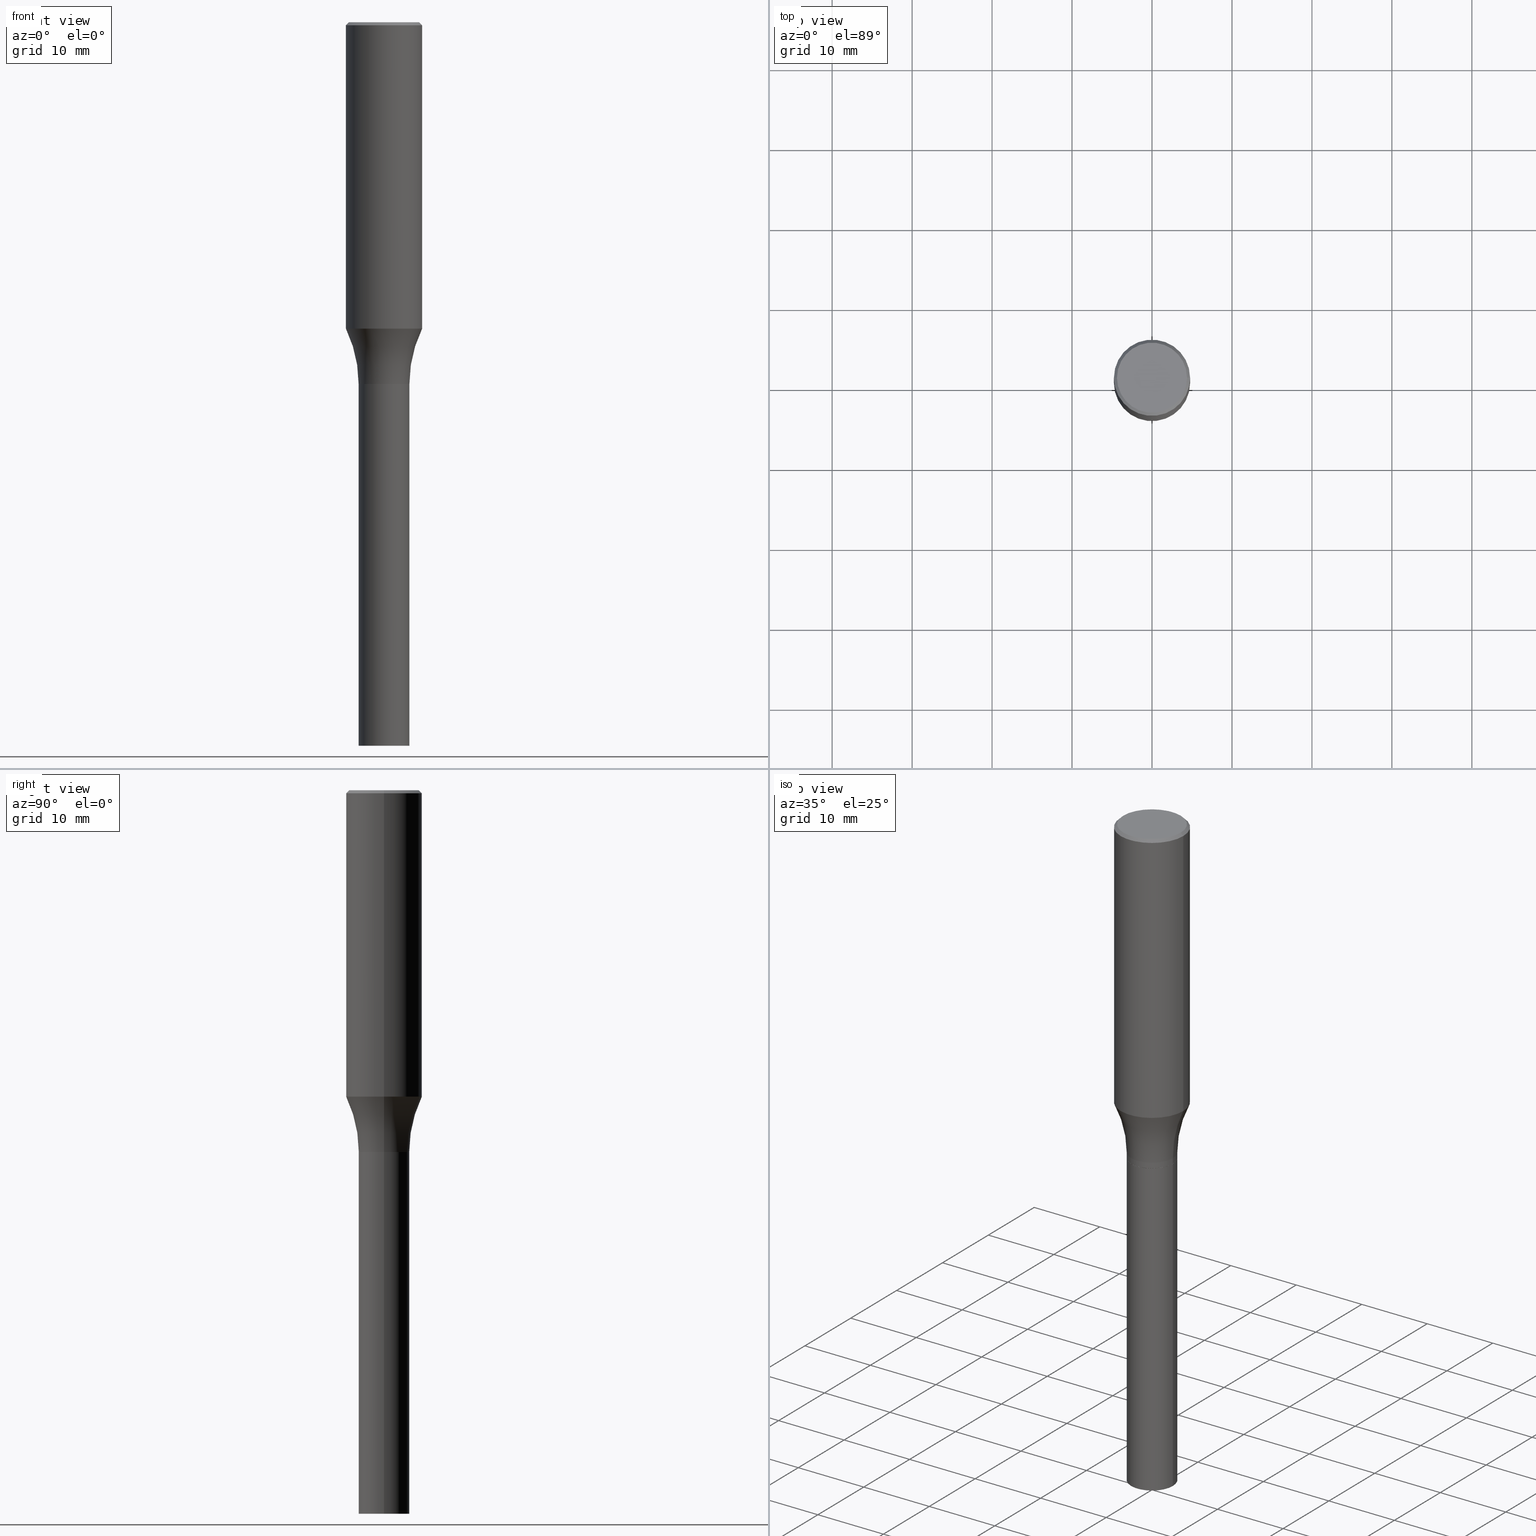
[diagram: canonical four-view strip — front | top / right | iso, engineering-drawing reading convention]
A machine part, canonical four-view strip (front | top / right | iso — engineering-drawing reading convention). The complete STEP part file that produces these views, byte-faithful:
ISO-10303-21;
HEADER;
FILE_DESCRIPTION (( 'STEP AP203' ),
    '1' );
FILE_NAME ('34506.STEP',
    '2024-03-04T15:28:13',
    ( '' ),
    ( '' ),
    'SwSTEP 2.0',
    'SolidWorks 2023',
    '' );
FILE_SCHEMA (( 'CONFIG_CONTROL_DESIGN' ));
ENDSEC;

DATA;
#1 = ADVANCED_FACE ( 'NONE', ( #50 ), #46, .T. ) ;
#2 = CYLINDRICAL_SURFACE ( 'NONE', #88, 0.1249999999999999584 ) ;
#3 = CARTESIAN_POINT ( 'NONE',  ( 0.1250000000000000555, -8.728703347107838319E-16, 6.095220969744923244E-30 ) ) ;
#4 = CARTESIAN_POINT ( 'NONE',  ( 3.668203209277705088E-31, -5.237222008264718399E-17, -0.01499999999999999944 ) ) ;
#5 = VERTEX_POINT ( 'NONE', #265 ) ;
#6 = VECTOR ( 'NONE', #258, 39.37007874015748143 ) ;
#7 = AXIS2_PLACEMENT_3D ( 'NONE', #281, #72, #35 ) ;
#8 = ORIENTED_EDGE ( 'NONE', *, *, #402, .T. ) ;
#9 = CARTESIAN_POINT ( 'NONE',  ( 0.1875000000000000278, -1.338715594664809642E-15, -0.01499999999999999944 ) ) ;
#10 = VECTOR ( 'NONE', #183, 39.37007874015748143 ) ;
#11 = DIRECTION ( 'NONE',  ( 1.000000000000000000, -6.982962677686266711E-15, 4.874714842691873619E-29 ) ) ;
#12 = CARTESIAN_POINT ( 'NONE',  ( -0.1245000000000000689, -5.441938479962453879E-15, -1.811999999999999611 ) ) ;
#13 = ORIENTED_EDGE ( 'NONE', *, *, #89, .F. ) ;
#14 = PLANE ( 'NONE',  #323 ) ;
#15 = APPROVAL_ROLE ( '' ) ;
#16 = VERTEX_POINT ( 'NONE', #49 ) ;
#17 = VECTOR ( 'NONE', #283, 39.37007874015748143 ) ;
#18 = ORIENTED_EDGE ( 'NONE', *, *, #446, .T. ) ;
#19 = CIRCLE ( 'NONE', #284, 0.1249999999999999861 ) ;
#20 = CARTESIAN_POINT ( 'NONE',  ( 0.000000000000000000, 0.000000000000000000, 0.000000000000000000 ) ) ;
#21 = SECURITY_CLASSIFICATION ( '', '', #58 ) ;
#22 = ADVANCED_FACE ( 'NONE', ( #345 ), #14, .F. ) ;
#23 = PRODUCT_DEFINITION_SHAPE ( 'NONE', 'NONE',  #248 ) ;
#24 = FACE_OUTER_BOUND ( 'NONE', #249, .T. ) ;
#25 = ORIENTED_EDGE ( 'NONE', *, *, #121, .F. ) ;
#26 = CYLINDRICAL_SURFACE ( 'NONE', #371, 0.1875000000000000555 ) ;
#27 = CARTESIAN_POINT ( 'NONE',  ( 1.511595370828340099E-45, -2.158157575259326350E-31, -6.181208964944381512E-17 ) ) ;
#28 = EDGE_LOOP ( 'NONE', ( #68, #221, #69, #157 ) ) ;
#29 = EDGE_CURVE ( 'NONE', #246, #184, #116, .T. ) ;
#30 = DIRECTION ( 'NONE',  ( 1.000000000000000000, -6.982962677686265133E-15, 0.000000000000000000 ) ) ;
#31 = AXIS2_PLACEMENT_3D ( 'NONE', #198, #259, #453 ) ;
#32 =( GEOMETRIC_REPRESENTATION_CONTEXT ( 3 ) GLOBAL_UNCERTAINTY_ASSIGNED_CONTEXT ( ( #305 ) ) GLOBAL_UNIT_ASSIGNED_CONTEXT ( ( #94, #378, #408 ) ) REPRESENTATION_CONTEXT ( 'NONE', 'WORKASPACE' ) );
#33 = EDGE_LOOP ( 'NONE', ( #333, #328, #322, #336 ) ) ;
#34 = DIRECTION ( 'NONE',  ( 1.000000000000000000, -6.982962677686263555E-15, 0.000000000000000000 ) ) ;
#35 = DIRECTION ( 'NONE',  ( 1.000000000000000000, -6.982962677686262766E-15, 0.000000000000000000 ) ) ;
#36 = DIRECTION ( 'NONE',  ( 1.000000000000000000, -6.982962677686265922E-15, 4.876176775795935793E-29 ) ) ;
#37 = VERTEX_POINT ( 'NONE', #136 ) ;
#38 = DIRECTION ( 'NONE',  ( -2.445468806185136597E-29, 3.491481338843145583E-15, 1.000000000000000000 ) ) ;
#39 = CARTESIAN_POINT ( 'NONE',  ( 4.431189476807466720E-29, -6.326564185983779002E-15, -1.811999999999999611 ) ) ;
#40 = AXIS2_PLACEMENT_3D ( 'NONE', #44, #122, #149 ) ;
#41 = CC_DESIGN_DATE_AND_TIME_ASSIGNMENT ( #452, #130, ( #21 ) ) ;
#42 = ORIENTED_EDGE ( 'NONE', *, *, #168, .F. ) ;
#43 = ADVANCED_FACE ( 'NONE', ( #434 ), #350, .F. ) ;
#44 = CARTESIAN_POINT ( 'NONE',  ( 4.355379943815728162E-29, -6.218328264479641837E-15, -1.780999999999999917 ) ) ;
#45 = ADVANCED_FACE ( 'NONE', ( #24 ), #290, .T. ) ;
#46 = CONICAL_SURFACE ( 'NONE', #53, 0.1875000000000000278, 0.7853981633974507215 ) ;
#47 = AXIS2_PLACEMENT_3D ( 'NONE', #367, #444, #120 ) ;
#48 = LINE ( 'NONE', #295, #465 ) ;
#49 = CARTESIAN_POINT ( 'NONE',  ( 0.1250000000000000555, -7.199434520694563130E-15, -1.811999999999999611 ) ) ;
#50 = FACE_OUTER_BOUND ( 'NONE', #28, .T. ) ;
#51 = PERSON_AND_ORGANIZATION ( #171, #182 ) ;
#52 = PERSON_AND_ORGANIZATION_ROLE ( 'creator' ) ;
#53 = AXIS2_PLACEMENT_3D ( 'NONE', #131, #124, #347 ) ;
#54 = TOROIDAL_SURFACE ( 'NONE', #325, 0.7499999999999998890, 0.6250000000000000000 ) ;
#55 = APPROVAL_PERSON_ORGANIZATION ( #222, #389, #211 ) ;
#56 = FACE_OUTER_BOUND ( 'NONE', #426, .T. ) ;
#57 = DIRECTION ( 'NONE',  ( -1.000000000000000000, 7.105427357601001859E-15, 0.000000000000000000 ) ) ;
#58 = SECURITY_CLASSIFICATION_LEVEL ( 'unclassified' ) ;
#59 = ORIENTED_EDGE ( 'NONE', *, *, #289, .T. ) ;
#60 = CARTESIAN_POINT ( 'NONE',  ( 4.431189476807466720E-29, -6.326564185983779002E-15, -1.811999999999999611 ) ) ;
#61 = CARTESIAN_POINT ( 'NONE',  ( 4.431189476807466720E-29, -6.326564185983779002E-15, -1.811999999999999611 ) ) ;
#62 = AXIS2_PLACEMENT_3D ( 'NONE', #118, #78, #36 ) ;
#63 = EDGE_LOOP ( 'NONE', ( #79, #101 ) ) ;
#64 = AXIS2_PLACEMENT_3D ( 'NONE', #205, #392, #315 ) ;
#65 = FACE_OUTER_BOUND ( 'NONE', #451, .T. ) ;
#66 = DIRECTION ( 'NONE',  ( 0.7071067811865595631, -2.468850131082382884E-15, 0.7071067811865354713 ) ) ;
#67 = EDGE_CURVE ( 'NONE', #365, #184, #235, .T. ) ;
#68 = ORIENTED_EDGE ( 'NONE', *, *, #366, .F. ) ;
#69 = ORIENTED_EDGE ( 'NONE', *, *, #121, .T. ) ;
#70 = ORIENTED_EDGE ( 'NONE', *, *, #300, .T. ) ;
#71 = CARTESIAN_POINT ( 'NONE',  ( 4.429966742404374479E-29, -6.324818445314357499E-15, -1.811499999999999888 ) ) ;
#72 = DIRECTION ( 'NONE',  ( -2.445468806185136597E-29, 3.491481338843145583E-15, 1.000000000000000000 ) ) ;
#73 = COORDINATED_UNIVERSAL_TIME_OFFSET ( 5, 0, .BEHIND. ) ;
#74 = FACE_OUTER_BOUND ( 'NONE', #134, .T. ) ;
#75 = DIRECTION ( 'NONE',  ( -2.445468806185136597E-29, 3.491481338843145583E-15, 1.000000000000000000 ) ) ;
#76 = VERTEX_POINT ( 'NONE', #459 ) ;
#77 = ADVANCED_FACE ( 'NONE', ( #342 ), #339, .T. ) ;
#78 = DIRECTION ( 'NONE',  ( -2.445468806185136597E-29, 3.491481338843145583E-15, 1.000000000000000000 ) ) ;
#79 = ORIENTED_EDGE ( 'NONE', *, *, #129, .T. ) ;
#80 = CIRCLE ( 'NONE', #7, 0.1245000000000000689 ) ;
#81 = EDGE_CURVE ( 'NONE', #85, #37, #406, .T. ) ;
#82 = APPLICATION_PROTOCOL_DEFINITION ( 'international standard', 'config_control_design', 1994, #165 ) ;
#83 = VERTEX_POINT ( 'NONE', #226 ) ;
#84 = DIRECTION ( 'NONE',  ( 1.000000000000000000, -6.982962677686267499E-15, 0.000000000000000000 ) ) ;
#85 = VERTEX_POINT ( 'NONE', #376 ) ;
#86 = FACE_OUTER_BOUND ( 'NONE', #33, .T. ) ;
#87 = DIRECTION ( 'NONE',  ( -2.445468806185136597E-29, 3.491481338843145583E-15, 1.000000000000000000 ) ) ;
#88 = AXIS2_PLACEMENT_3D ( 'NONE', #312, #268, #417 ) ;
#89 = EDGE_CURVE ( 'NONE', #356, #435, #296, .T. ) ;
#90 = AXIS2_PLACEMENT_3D ( 'NONE', #320, #159, #242 ) ;
#91 = CARTESIAN_POINT ( 'NONE',  ( 0.1249999999999999584, -8.728703347107831416E-16, 6.095220969744918340E-30 ) ) ;
#92 = AXIS2_PLACEMENT_3D ( 'NONE', #61, #234, #84 ) ;
#93 = CC_DESIGN_APPROVAL ( #382, ( #224 ) ) ;
#94 =( CONVERSION_BASED_UNIT ( 'INCH', #196 ) LENGTH_UNIT ( ) NAMED_UNIT ( #399 ) );
#95 = DATE_AND_TIME ( #454, #293 ) ;
#96 = PERSON_AND_ORGANIZATION ( #171, #182 ) ;
#97 = CARTESIAN_POINT ( 'NONE',  ( 3.689157981581848142E-29, -5.267139869524930466E-15, -1.508568816028707404 ) ) ;
#98 = DIRECTION ( 'NONE',  ( 2.438088387897960049E-29, -3.491481338843145188E-15, -1.000000000000000000 ) ) ;
#99 = CARTESIAN_POINT ( 'NONE',  ( -0.1875000000000000278, 1.256933281983527732E-15, -0.01499999999999999944 ) ) ;
#100 = APPROVAL_STATUS ( 'not_yet_approved' ) ;
#101 = ORIENTED_EDGE ( 'NONE', *, *, #450, .T. ) ;
#102 = CARTESIAN_POINT ( 'NONE',  ( 0.1250000000000000555, -1.330952686367006701E-14, -3.561999999999999833 ) ) ;
#103 = ORIENTED_EDGE ( 'NONE', *, *, #110, .T. ) ;
#104 = CIRCLE ( 'NONE', #64, 0.1250000000000000555 ) ;
#105 = ORIENTED_EDGE ( 'NONE', *, *, #150, .T. ) ;
#106 = ORIENTED_EDGE ( 'NONE', *, *, #67, .T. ) ;
#107 = CIRCLE ( 'NONE', #381, 0.1250000000000000555 ) ;
#108 = APPROVAL_PERSON_ORGANIZATION ( #197, #382, #200 ) ;
#109 = DIRECTION ( 'NONE',  ( -2.445468806185136877E-29, 3.491481338843145188E-15, 1.000000000000000000 ) ) ;
#110 = EDGE_CURVE ( 'NONE', #184, #365, #332, .T. ) ;
#111 = ORIENTED_EDGE ( 'NONE', *, *, #110, .F. ) ;
#112 = FACE_OUTER_BOUND ( 'NONE', #287, .T. ) ;
#113 = ORIENTED_EDGE ( 'NONE', *, *, #402, .F. ) ;
#114 = ADVANCED_FACE ( 'NONE', ( #86 ), #123, .T. ) ;
#115 = APPLICATION_CONTEXT ( 'configuration controlled 3d designs of mechanical parts and assemblies' ) ;
#116 = CIRCLE ( 'NONE', #386, 0.6250000000000000000 ) ;
#117 = CIRCLE ( 'NONE', #457, 0.1249999999999999861 ) ;
#118 = CARTESIAN_POINT ( 'NONE',  ( 0.000000000000000000, 0.000000000000000000, 0.000000000000000000 ) ) ;
#119 = DIRECTION ( 'NONE',  ( -2.445468806185136877E-29, 3.491481338843145188E-15, 1.000000000000000000 ) ) ;
#120 = DIRECTION ( 'NONE',  ( 1.000000000000000000, -6.982962677686265133E-15, 0.000000000000000000 ) ) ;
#121 = EDGE_CURVE ( 'NONE', #435, #410, #343, .T. ) ;
#122 = DIRECTION ( 'NONE',  ( -2.445468806185136597E-29, 3.491481338843145583E-15, 1.000000000000000000 ) ) ;
#123 = CONICAL_SURFACE ( 'NONE', #308, 0.1245000000000000689, 0.7853981633974653764 ) ;
#124 = DIRECTION ( 'NONE',  ( 2.445468806185136597E-29, -3.491481338843145583E-15, -1.000000000000000000 ) ) ;
#125 = EDGE_CURVE ( 'NONE', #401, #189, #107, .T. ) ;
#126 = DATE_TIME_ROLE ( 'creation_date' ) ;
#127 = ADVANCED_FACE ( 'NONE', ( #65 ), #239, .F. ) ;
#128 = DATE_AND_TIME ( #264, #334 ) ;
#129 = EDGE_CURVE ( 'NONE', #16, #138, #104, .T. ) ;
#130 = DATE_TIME_ROLE ( 'classification_date' ) ;
#131 = CARTESIAN_POINT ( 'NONE',  ( 3.668203209277705088E-31, -5.237222008264718399E-17, -0.01499999999999999944 ) ) ;
#132 = DIRECTION ( 'NONE',  ( 0.000000000000000000, 0.000000000000000000, 1.000000000000000000 ) ) ;
#133 = DIRECTION ( 'NONE',  ( -2.438088387897960049E-29, 3.491481338843145188E-15, 1.000000000000000000 ) ) ;
#134 = EDGE_LOOP ( 'NONE', ( #433, #373, #167, #253 ) ) ;
#135 = DIRECTION ( 'NONE',  ( 1.000000000000000000, -6.982962677686265133E-15, 0.000000000000000000 ) ) ;
#136 = CARTESIAN_POINT ( 'NONE',  ( -0.1250000000000000000, -5.383394935196874435E-15, -1.811499999999999888 ) ) ;
#137 = CYLINDRICAL_SURFACE ( 'NONE', #403, 0.1249999999999999584 ) ;
#138 = VERTEX_POINT ( 'NONE', #241 ) ;
#139 = CARTESIAN_POINT ( 'NONE',  ( 0.1725000000000000144, -1.261075749640199505E-15, -6.181208964943518695E-17 ) ) ;
#140 = CARTESIAN_POINT ( 'NONE',  ( 4.355379943815728162E-29, -6.218328264479641837E-15, -1.780999999999999917 ) ) ;
#141 = CIRCLE ( 'NONE', #255, 0.1725000000000000144 ) ;
#142 = ORIENTED_EDGE ( 'NONE', *, *, #300, .F. ) ;
#143 = CC_DESIGN_APPROVAL ( #286, ( #21 ) ) ;
#144 = EDGE_LOOP ( 'NONE', ( #277, #398, #8, #162 ) ) ;
#145 = AXIS2_PLACEMENT_3D ( 'NONE', #4, #75, #400 ) ;
#146 = ORIENTED_EDGE ( 'NONE', *, *, #422, .F. ) ;
#147 = EDGE_CURVE ( 'NONE', #189, #401, #437, .T. ) ;
#148 = CIRCLE ( 'NONE', #419, 0.1245000000000000689 ) ;
#149 = DIRECTION ( 'NONE',  ( 1.000000000000000000, -6.982962677686265922E-15, 4.883557194083112340E-29 ) ) ;
#150 = EDGE_CURVE ( 'NONE', #356, #246, #355, .T. ) ;
#151 = EDGE_LOOP ( 'NONE', ( #464, #348, #179, #113 ) ) ;
#152 = AXIS2_PLACEMENT_3D ( 'NONE', #298, #344, #443 ) ;
#153 = CIRCLE ( 'NONE', #230, 0.6250000000000000000 ) ;
#154 = ADVANCED_FACE ( 'NONE', ( #273 ), #26, .T. ) ;
#155 = CLOSED_SHELL ( 'NONE', ( #210, #22, #304, #43 ) ) ;
#156 = APPROVAL_PERSON_ORGANIZATION ( #51, #286, #15 ) ;
#157 = ORIENTED_EDGE ( 'NONE', *, *, #231, .F. ) ;
#158 = DIRECTION ( 'NONE',  ( -2.438088387897960049E-29, 3.491481338843145188E-15, 1.000000000000000000 ) ) ;
#159 = DIRECTION ( 'NONE',  ( 2.445468806185136597E-29, -3.491481338843145583E-15, -1.000000000000000000 ) ) ;
#160 = CARTESIAN_POINT ( 'NONE',  ( 0.1875000000000000555, -6.576445371591104685E-15, -1.508568816028707404 ) ) ;
#161 = DIRECTION ( 'NONE',  ( -2.445468806185136597E-29, 3.491481338843145583E-15, 1.000000000000000000 ) ) ;
#162 = ORIENTED_EDGE ( 'NONE', *, *, #450, .F. ) ;
#163 = DIRECTION ( 'NONE',  ( 1.000000000000000000, -6.982962677686265922E-15, 4.876176775795935793E-29 ) ) ;
#164 = MANIFOLD_SOLID_BREP ( 'Body-Move/Copy2[1]', #155 ) ;
#165 = APPLICATION_CONTEXT ( 'configuration controlled 3d designs of mechanical parts and assemblies' ) ;
#166 = MANIFOLD_SOLID_BREP ( 'Body-Move/Copy2[2]', #254 ) ;
#167 = ORIENTED_EDGE ( 'NONE', *, *, #309, .T. ) ;
#168 = EDGE_CURVE ( 'NONE', #356, #365, #153, .T. ) ;
#169 = CARTESIAN_POINT ( 'NONE',  ( -0.1875000000000000278, 1.256933281983527732E-15, -0.01499999999999999944 ) ) ;
#170 = CONICAL_SURFACE ( 'NONE', #440, 0.1245000000000000689, 0.7853981633974653764 ) ;
#171 = PERSON ( 'UNSPECIFIED', 'UNSPECIFIED', 'UNSPECIFIED', ('UNSPECIFIED'), ('UNSPECIFIED'), ('UNSPECIFIED') ) ;
#172 = CARTESIAN_POINT ( 'NONE',  ( 8.758450869083629996E-29, -1.236836032911767685E-14, -3.561999999999999833 ) ) ;
#173 = DIRECTION ( 'NONE',  ( -2.445468806185136597E-29, 3.491481338843145583E-15, 1.000000000000000000 ) ) ;
#174 = VERTEX_POINT ( 'NONE', #139 ) ;
#175 = FACE_OUTER_BOUND ( 'NONE', #394, .T. ) ;
#176 = LINE ( 'NONE', #3, #261 ) ;
#177 = LINE ( 'NONE', #458, #187 ) ;
#178 = DIRECTION ( 'NONE',  ( -2.445468806185136597E-29, 3.491481338843145583E-15, 1.000000000000000000 ) ) ;
#179 = ORIENTED_EDGE ( 'NONE', *, *, #129, .F. ) ;
#180 = AXIS2_PLACEMENT_3D ( 'NONE', #456, #252, #212 ) ;
#181 = CARTESIAN_POINT ( 'NONE',  ( -0.1249999999999999584, 8.881784197001249365E-16, -6.148668862818630826E-30 ) ) ;
#182 = ORGANIZATION ( 'UNSPECIFIED', 'UNSPECIFIED', '' ) ;
#183 = DIRECTION ( 'NONE',  ( -2.445468806185136877E-29, 3.491481338843145188E-15, 1.000000000000000000 ) ) ;
#184 = VERTEX_POINT ( 'NONE', #271 ) ;
#185 = DIRECTION ( 'NONE',  ( 1.000000000000000000, -6.982962677686265922E-15, 0.000000000000000000 ) ) ;
#186 = ORIENTED_EDGE ( 'NONE', *, *, #289, .F. ) ;
#187 = VECTOR ( 'NONE', #269, 39.37007874015748143 ) ;
#188 = DIRECTION ( 'NONE',  ( -2.445468806185136597E-29, 3.491481338843145583E-15, 1.000000000000000000 ) ) ;
#189 = VERTEX_POINT ( 'NONE', #102 ) ;
#190 = CC_DESIGN_PERSON_AND_ORGANIZATION_ASSIGNMENT ( #96, #418, ( #224 ) ) ;
#191 = APPROVAL_DATE_TIME ( #95, #389 ) ;
#192 = EDGE_CURVE ( 'NONE', #37, #5, #19, .T. ) ;
#193 = CALENDAR_DATE ( 2024, 4, 3 ) ;
#194 = AXIS2_PLACEMENT_3D ( 'NONE', #260, #225, #185 ) ;
#195 = LOCAL_TIME ( 10, 28, 13.00000000000000000, #352 ) ;
#196 = LENGTH_MEASURE_WITH_UNIT ( LENGTH_MEASURE( 0.02539999999999999897 ), #306 );
#197 = PERSON_AND_ORGANIZATION ( #171, #182 ) ;
#198 = CARTESIAN_POINT ( 'NONE',  ( 3.668203209277705088E-31, -5.237222008264718399E-17, -0.01499999999999999944 ) ) ;
#199 = ADVANCED_FACE ( 'NONE', ( #175 ), #2, .T. ) ;
#200 = APPROVAL_ROLE ( '' ) ;
#201 = ORIENTED_EDGE ( 'NONE', *, *, #168, .T. ) ;
#202 = DIRECTION ( 'NONE',  ( -2.445468806185136597E-29, 3.491481338843145583E-15, 1.000000000000000000 ) ) ;
#203 = DIRECTION ( 'NONE',  ( -1.000000000000000000, 6.982962677686265922E-15, -4.876176775795935793E-29 ) ) ;
#204 = VECTOR ( 'NONE', #66, 39.37007874015748143 ) ;
#205 = CARTESIAN_POINT ( 'NONE',  ( 4.431189476807466720E-29, -6.326564185983779002E-15, -1.811999999999999611 ) ) ;
#206 = CC_DESIGN_PERSON_AND_ORGANIZATION_ASSIGNMENT ( #240, #52, ( #224 ) ) ;
#207 = LINE ( 'NONE', #216, #10 ) ;
#208 = DIRECTION ( 'NONE',  ( 1.000000000000000000, -6.982962677686267499E-15, 4.876176775795936353E-29 ) ) ;
#209 = ORIENTED_EDGE ( 'NONE', *, *, #231, .T. ) ;
#210 = ADVANCED_FACE ( 'NONE', ( #307 ), #423, .T. ) ;
#211 = APPROVAL_ROLE ( '' ) ;
#212 = DIRECTION ( 'NONE',  ( 1.000000000000000000, -6.982962677686267499E-15, 4.876176775795936353E-29 ) ) ;
#213 = CARTESIAN_POINT ( 'NONE',  ( 4.355379943815728162E-29, -6.218328264479641837E-15, -1.780999999999999917 ) ) ;
#214 = TOROIDAL_SURFACE ( 'NONE', #40, 0.7499999999999998890, 0.6250000000000000000 ) ;
#215 = CC_DESIGN_DATE_AND_TIME_ASSIGNMENT ( #390, #126, ( #248 ) ) ;
#216 = CARTESIAN_POINT ( 'NONE',  ( -0.1250000000000000555, 8.881784197001256268E-16, -6.148668862818635730E-30 ) ) ;
#217 = DIRECTION ( 'NONE',  ( -2.445468806185136597E-29, 3.491481338843145583E-15, 1.000000000000000000 ) ) ;
#218 = DIRECTION ( 'NONE',  ( -2.445468806185136877E-29, 3.491481338843145188E-15, 1.000000000000000000 ) ) ;
#219 = DIRECTION ( 'NONE',  ( -2.445468806185136597E-29, 3.491481338843145583E-15, 1.000000000000000000 ) ) ;
#220 = CARTESIAN_POINT ( 'NONE',  ( 0.1875000000000000555, -1.309305502066175205E-15, 9.142831454617382414E-30 ) ) ;
#221 = ORIENTED_EDGE ( 'NONE', *, *, #340, .T. ) ;
#222 = PERSON_AND_ORGANIZATION ( #171, #182 ) ;
#223 = CIRCLE ( 'NONE', #448, 0.1725000000000000144 ) ;
#224 = PRODUCT_DEFINITION_FORMATION_WITH_SPECIFIED_SOURCE ( 'ANY', '', #396, .NOT_KNOWN. ) ;
#225 = DIRECTION ( 'NONE',  ( -2.445468806185136597E-29, 3.491481338843145583E-15, 1.000000000000000000 ) ) ;
#226 = CARTESIAN_POINT ( 'NONE',  ( -0.1725000000000000144, 1.230747171942204192E-15, -6.181208964945233235E-17 ) ) ;
#227 = ORIENTED_EDGE ( 'NONE', *, *, #318, .F. ) ;
#228 = ORIENTED_EDGE ( 'NONE', *, *, #245, .T. ) ;
#229 = FACE_OUTER_BOUND ( 'NONE', #251, .T. ) ;
#230 = AXIS2_PLACEMENT_3D ( 'NONE', #319, #421, #135 ) ;
#231 = EDGE_CURVE ( 'NONE', #83, #410, #280, .T. ) ;
#232 = CALENDAR_DATE ( 2024, 4, 3 ) ;
#233 = PERSON_AND_ORGANIZATION_ROLE ( 'creator' ) ;
#234 = DIRECTION ( 'NONE',  ( -2.445468806185136597E-29, 3.491481338843145583E-15, 1.000000000000000000 ) ) ;
#235 = CIRCLE ( 'NONE', #411, 0.1249999999999999584 ) ;
#236 = CIRCLE ( 'NONE', #31, 0.1875000000000000278 ) ;
#237 = DIRECTION ( 'NONE',  ( -2.445468806185136877E-29, 3.491481338843145188E-15, 1.000000000000000000 ) ) ;
#238 = APPROVAL_DATE_TIME ( #413, #286 ) ;
#239 = PLANE ( 'NONE',  #243 ) ;
#240 = PERSON_AND_ORGANIZATION ( #171, #182 ) ;
#241 = CARTESIAN_POINT ( 'NONE',  ( -0.1250000000000000555, -8.493431937771405711E-15, -1.811999999999999611 ) ) ;
#242 = DIRECTION ( 'NONE',  ( -1.000000000000000000, 6.982962677686265922E-15, 0.000000000000000000 ) ) ;
#243 = AXIS2_PLACEMENT_3D ( 'NONE', #60, #158, #163 ) ;
#244 = ORIENTED_EDGE ( 'NONE', *, *, #147, .F. ) ;
#245 = EDGE_CURVE ( 'NONE', #5, #365, #247, .T. ) ;
#246 = VERTEX_POINT ( 'NONE', #388 ) ;
#247 = LINE ( 'NONE', #91, #369 ) ;
#248 = PRODUCT_DEFINITION ( 'UNKNOWN', '', #224, #416 ) ;
#249 = EDGE_LOOP ( 'NONE', ( #442, #186, #209, #18 ) ) ;
#250 = AXIS2_PLACEMENT_3D ( 'NONE', #97, #202, #354 ) ;
#251 = EDGE_LOOP ( 'NONE', ( #438, #420, #103, #42 ) ) ;
#252 = DIRECTION ( 'NONE',  ( -2.445468806185136597E-29, 3.491481338843145583E-15, 1.000000000000000000 ) ) ;
#253 = ORIENTED_EDGE ( 'NONE', *, *, #192, .F. ) ;
#254 = CLOSED_SHELL ( 'NONE', ( #154, #1, #114, #199, #274, #372, #337, #414, #127, #270, #45, #77 ) ) ;
#255 = AXIS2_PLACEMENT_3D ( 'NONE', #27, #276, #432 ) ;
#256 = CARTESIAN_POINT ( 'NONE',  ( 0.000000000000000000, 0.000000000000000000, 0.000000000000000000 ) ) ;
#257 = FACE_OUTER_BOUND ( 'NONE', #144, .T. ) ;
#258 = DIRECTION ( 'NONE',  ( -0.7071067811865595631, 7.493145998870398336E-15, 0.7071067811865354713 ) ) ;
#259 = DIRECTION ( 'NONE',  ( -2.445468806185136597E-29, 3.491481338843145583E-15, 1.000000000000000000 ) ) ;
#260 = CARTESIAN_POINT ( 'NONE',  ( 3.689157981581848142E-29, -5.267139869524930466E-15, -1.508568816028707404 ) ) ;
#261 = VECTOR ( 'NONE', #218, 39.37007874015748143 ) ;
#262 = COORDINATED_UNIVERSAL_TIME_OFFSET ( 5, 0, .BEHIND. ) ;
#263 = PERSON_AND_ORGANIZATION ( #171, #182 ) ;
#264 = CALENDAR_DATE ( 2024, 4, 3 ) ;
#265 = CARTESIAN_POINT ( 'NONE',  ( 0.1249999999999999861, -7.197688780025140837E-15, -1.811499999999999888 ) ) ;
#266 = PERSON_AND_ORGANIZATION ( #171, #182 ) ;
#267 = ORIENTED_EDGE ( 'NONE', *, *, #446, .F. ) ;
#268 = DIRECTION ( 'NONE',  ( -2.445468806185136597E-29, 3.491481338843145583E-15, 1.000000000000000000 ) ) ;
#269 = DIRECTION ( 'NONE',  ( 0.7071067811865492381, -7.319954787623260779E-15, -0.7071067811865457964 ) ) ;
#270 = ADVANCED_FACE ( 'NONE', ( #56 ), #349, .F. ) ;
#271 = CARTESIAN_POINT ( 'NONE',  ( -0.1249999999999999584, -4.632511042377129611E-15, -1.780999999999999917 ) ) ;
#272 = ORIENTED_EDGE ( 'NONE', *, *, #89, .T. ) ;
#273 = FACE_OUTER_BOUND ( 'NONE', #303, .T. ) ;
#274 = ADVANCED_FACE ( 'NONE', ( #229 ), #214, .F. ) ;
#275 = AXIS2_PLACEMENT_3D ( 'NONE', #256, #188, #341 ) ;
#276 = DIRECTION ( 'NONE',  ( -2.445468806185136597E-29, 3.491481338843145583E-15, 1.000000000000000000 ) ) ;
#277 = ORIENTED_EDGE ( 'NONE', *, *, #385, .F. ) ;
#278 = DIRECTION ( 'NONE',  ( 7.105427357601001859E-15, 1.000000000000000000, -3.491481338843145583E-15 ) ) ;
#279 = LINE ( 'NONE', #321, #204 ) ;
#280 = LINE ( 'NONE', #99, #17 ) ;
#281 = CARTESIAN_POINT ( 'NONE',  ( 4.431189476807466720E-29, -6.326564185983779002E-15, -1.811999999999999611 ) ) ;
#282 = EDGE_CURVE ( 'NONE', #246, #356, #429, .T. ) ;
#283 = DIRECTION ( 'NONE',  ( -0.7071067811865492381, 2.468850131082275204E-15, -0.7071067811865457964 ) ) ;
#284 = AXIS2_PLACEMENT_3D ( 'NONE', #71, #351, #34 ) ;
#285 = DIRECTION ( 'NONE',  ( 1.000000000000000000, -6.982962677686259611E-15, 0.000000000000000000 ) ) ;
#286 = APPROVAL ( #100, 'UNSPECIFIED' ) ;
#287 = EDGE_LOOP ( 'NONE', ( #424, #447, #201, #106 ) ) ;
#288 = CARTESIAN_POINT ( 'NONE',  ( 4.431189476807466720E-29, -6.326564185983779002E-15, -1.811999999999999611 ) ) ;
#289 = EDGE_CURVE ( 'NONE', #83, #174, #223, .T. ) ;
#290 = CONICAL_SURFACE ( 'NONE', #90, 0.1875000000000000278, 0.7853981633974507215 ) ;
#291 = APPLICATION_PROTOCOL_DEFINITION ( 'international standard', 'config_control_design', 1994, #115 ) ;
#292 = CIRCLE ( 'NONE', #92, 0.1250000000000000555 ) ;
#293 = LOCAL_TIME ( 10, 28, 13.00000000000000000, #73 ) ;
#294 = CC_DESIGN_PERSON_AND_ORGANIZATION_ASSIGNMENT ( #263, #233, ( #248 ) ) ;
#295 = CARTESIAN_POINT ( 'NONE',  ( -0.1875000000000000555, 1.332267629550188243E-15, -9.223003294227950793E-30 ) ) ;
#296 = LINE ( 'NONE', #220, #331 ) ;
#297 = CARTESIAN_POINT ( 'NONE',  ( 4.431189476807466720E-29, -6.326564185983779002E-15, -1.811999999999999611 ) ) ;
#298 = CARTESIAN_POINT ( 'NONE',  ( 1.204561061900881047E-15, 0.1725000000000000144, -6.331865757751645696E-16 ) ) ;
#299 = ORIENTED_EDGE ( 'NONE', *, *, #125, .F. ) ;
#300 = EDGE_CURVE ( 'NONE', #246, #410, #48, .T. ) ;
#301 = APPROVAL_DATE_TIME ( #128, #382 ) ;
#302 = AXIS2_PLACEMENT_3D ( 'NONE', #395, #425, #357 ) ;
#303 = EDGE_LOOP ( 'NONE', ( #105, #70, #25, #13 ) ) ;
#304 = ADVANCED_FACE ( 'NONE', ( #257 ), #405, .T. ) ;
#305 = UNCERTAINTY_MEASURE_WITH_UNIT (LENGTH_MEASURE( 1.000000000000000082E-05 ), #94, 'distance_accuracy_value', 'NONE');
#306 =( LENGTH_UNIT ( ) NAMED_UNIT ( * ) SI_UNIT ( $, .METRE. ) );
#307 = FACE_OUTER_BOUND ( 'NONE', #151, .T. ) ;
#308 = AXIS2_PLACEMENT_3D ( 'NONE', #39, #178, #327 ) ;
#309 = EDGE_CURVE ( 'NONE', #76, #5, #279, .T. ) ;
#310 = LOCAL_TIME ( 10, 28, 13.00000000000000000, #313 ) ;
#311 = CARTESIAN_POINT ( 'NONE',  ( 8.728703347108280081E-16, 0.1249999999999937272, -1.812000000000000277 ) ) ;
#312 = CARTESIAN_POINT ( 'NONE',  ( 0.000000000000000000, 0.000000000000000000, 0.000000000000000000 ) ) ;
#313 = COORDINATED_UNIVERSAL_TIME_OFFSET ( 5, 0, .BEHIND. ) ;
#314 = EDGE_LOOP ( 'NONE', ( #244, #299 ) ) ;
#315 = DIRECTION ( 'NONE',  ( 1.000000000000000000, -6.982962677686267499E-15, 0.000000000000000000 ) ) ;
#316 = DIRECTION ( 'NONE',  ( 1.000000000000000000, 0.000000000000000000, 0.000000000000000000 ) ) ;
#317 = FACE_OUTER_BOUND ( 'NONE', #380, .T. ) ;
#318 = EDGE_CURVE ( 'NONE', #76, #85, #80, .T. ) ;
#319 = CARTESIAN_POINT ( 'NONE',  ( 0.7499999999999998890, -1.145555027274434187E-14, -1.780999999999999917 ) ) ;
#320 = CARTESIAN_POINT ( 'NONE',  ( 3.668203209277705088E-31, -5.237222008264718399E-17, -0.01499999999999999944 ) ) ;
#321 = CARTESIAN_POINT ( 'NONE',  ( 0.1245000000000000689, -7.195943039355718545E-15, -1.811999999999999611 ) ) ;
#322 = ORIENTED_EDGE ( 'NONE', *, *, #412, .F. ) ;
#323 = AXIS2_PLACEMENT_3D ( 'NONE', #172, #133, #468 ) ;
#324 = DIRECTION ( 'NONE',  ( -2.445468806185136597E-29, 3.491481338843145583E-15, 1.000000000000000000 ) ) ;
#325 = AXIS2_PLACEMENT_3D ( 'NONE', #213, #324, #364 ) ;
#326 = PERSON_AND_ORGANIZATION ( #171, #182 ) ;
#327 = DIRECTION ( 'NONE',  ( 1.000000000000000000, -6.982962677686262766E-15, 0.000000000000000000 ) ) ;
#328 = ORIENTED_EDGE ( 'NONE', *, *, #81, .T. ) ;
#329 = DIRECTION ( 'NONE',  ( 1.000000000000000000, -6.982962677686262766E-15, 0.000000000000000000 ) ) ;
#330 = CC_DESIGN_PERSON_AND_ORGANIZATION_ASSIGNMENT ( #266, #449, ( #21 ) ) ;
#331 = VECTOR ( 'NONE', #109, 39.37007874015748143 ) ;
#332 = CIRCLE ( 'NONE', #47, 0.1249999999999999584 ) ;
#333 = ORIENTED_EDGE ( 'NONE', *, *, #318, .T. ) ;
#334 = LOCAL_TIME ( 10, 28, 13.00000000000000000, #383 ) ;
#335 = DIRECTION ( 'NONE',  ( -2.445468806185136877E-29, 3.491481338843145188E-15, 1.000000000000000000 ) ) ;
#336 = ORIENTED_EDGE ( 'NONE', *, *, #309, .F. ) ;
#337 = ADVANCED_FACE ( 'NONE', ( #317 ), #137, .T. ) ;
#338 = CARTESIAN_POINT ( 'NONE',  ( 0.000000000000000000, 0.000000000000000000, 0.000000000000000000 ) ) ;
#339 = CYLINDRICAL_SURFACE ( 'NONE', #62, 0.1875000000000000555 ) ;
#340 = EDGE_CURVE ( 'NONE', #174, #435, #177, .T. ) ;
#341 = DIRECTION ( 'NONE',  ( 1.000000000000000000, -6.982962677686267499E-15, 4.876176775795936353E-29 ) ) ;
#342 = FACE_OUTER_BOUND ( 'NONE', #353, .T. ) ;
#343 = CIRCLE ( 'NONE', #145, 0.1875000000000000278 ) ;
#344 = DIRECTION ( 'NONE',  ( 2.438088387897960049E-29, -3.491481338843145188E-15, -1.000000000000000000 ) ) ;
#345 = FACE_OUTER_BOUND ( 'NONE', #314, .T. ) ;
#346 = APPROVAL_STATUS ( 'not_yet_approved' ) ;
#347 = DIRECTION ( 'NONE',  ( -1.000000000000000000, 6.982962677686265922E-15, 0.000000000000000000 ) ) ;
#348 = ORIENTED_EDGE ( 'NONE', *, *, #385, .T. ) ;
#349 = PLANE ( 'NONE',  #152 ) ;
#350 = PLANE ( 'NONE',  #439 ) ;
#351 = DIRECTION ( 'NONE',  ( -2.445468806185136597E-29, 3.491481338843145583E-15, 1.000000000000000000 ) ) ;
#352 = COORDINATED_UNIVERSAL_TIME_OFFSET ( 5, 0, .BEHIND. ) ;
#353 = EDGE_LOOP ( 'NONE', ( #142, #384, #272, #267 ) ) ;
#354 = DIRECTION ( 'NONE',  ( 1.000000000000000000, -6.982962677686265922E-15, 0.000000000000000000 ) ) ;
#355 = CIRCLE ( 'NONE', #250, 0.1875000000000000555 ) ;
#356 = VERTEX_POINT ( 'NONE', #160 ) ;
#357 = DIRECTION ( 'NONE',  ( 1.000000000000000000, -6.982962677686259611E-15, 0.000000000000000000 ) ) ;
#358 = CARTESIAN_POINT ( 'NONE',  ( 0.1249999999999999584, -7.091198599190425175E-15, -1.780999999999999917 ) ) ;
#359 = CARTESIAN_POINT ( 'NONE',  ( -0.1250000000000000555, -8.493431937771405711E-15, -3.561999999999999833 ) ) ;
#360 = CARTESIAN_POINT ( 'NONE',  ( 0.000000000000000000, 0.000000000000000000, 0.000000000000000000 ) ) ;
#361 = CC_DESIGN_SECURITY_CLASSIFICATION ( #21, ( #224 ) ) ;
#362 = PERSON_AND_ORGANIZATION_ROLE ( 'design_owner' ) ;
#363 = DIRECTION ( 'NONE',  ( 1.000000000000000000, -6.982962677686263555E-15, 0.000000000000000000 ) ) ;
#364 = DIRECTION ( 'NONE',  ( 1.000000000000000000, -6.982962677686265922E-15, 4.883557194083112340E-29 ) ) ;
#365 = VERTEX_POINT ( 'NONE', #358 ) ;
#366 = EDGE_CURVE ( 'NONE', #174, #83, #141, .T. ) ;
#367 = CARTESIAN_POINT ( 'NONE',  ( 4.355379943815728162E-29, -6.218328264479641837E-15, -1.780999999999999917 ) ) ;
#368 = LINE ( 'NONE', #181, #387 ) ;
#369 = VECTOR ( 'NONE', #237, 39.37007874015748143 ) ;
#370 = CARTESIAN_POINT ( 'NONE',  ( 8.710759887631456325E-29, -1.243665652895928367E-14, -3.561999999999999833 ) ) ;
#372 = ADVANCED_FACE ( 'NONE', ( #112 ), #54, .F. ) ;
#371 = AXIS2_PLACEMENT_3D ( 'NONE', #20, #462, #427 ) ;
#373 = ORIENTED_EDGE ( 'NONE', *, *, #466, .T. ) ;
#374 = DIRECTION ( 'NONE',  ( -2.445468806185136597E-29, 3.491481338843145583E-15, 1.000000000000000000 ) ) ;
#375 = MECHANICAL_CONTEXT ( 'NONE', #165, 'mechanical' ) ;
#376 = CARTESIAN_POINT ( 'NONE',  ( -0.1245000000000000689, -5.439289252788342678E-15, -1.811999999999999611 ) ) ;
#377 = ORIENTED_EDGE ( 'NONE', *, *, #466, .F. ) ;
#378 =( NAMED_UNIT ( * ) PLANE_ANGLE_UNIT ( ) SI_UNIT ( $, .RADIAN. ) );
#379 = CARTESIAN_POINT ( 'NONE',  ( 1.511595370828340099E-45, -2.158157575259326350E-31, -6.181208964944381512E-17 ) ) ;
#380 = EDGE_LOOP ( 'NONE', ( #146, #409, #228, #111 ) ) ;
#381 = AXIS2_PLACEMENT_3D ( 'NONE', #370, #219, #285 ) ;
#382 = APPROVAL ( #346, 'UNSPECIFIED' ) ;
#383 = COORDINATED_UNIVERSAL_TIME_OFFSET ( 5, 0, .BEHIND. ) ;
#384 = ORIENTED_EDGE ( 'NONE', *, *, #282, .T. ) ;
#385 = EDGE_CURVE ( 'NONE', #401, #138, #207, .T. ) ;
#386 = AXIS2_PLACEMENT_3D ( 'NONE', #393, #278, #57 ) ;
#387 = VECTOR ( 'NONE', #335, 39.37007874015748143 ) ;
#388 = CARTESIAN_POINT ( 'NONE',  ( -0.1875000000000000555, -3.934872239974741828E-15, -1.508568816028707404 ) ) ;
#389 = APPROVAL ( #404, 'UNSPECIFIED' ) ;
#390 = DATE_AND_TIME ( #232, #195 ) ;
#391 = ORIENTED_EDGE ( 'NONE', *, *, #412, .T. ) ;
#392 = DIRECTION ( 'NONE',  ( -2.445468806185136597E-29, 3.491481338843145583E-15, 1.000000000000000000 ) ) ;
#393 = CARTESIAN_POINT ( 'NONE',  ( -0.7499999999999998890, -8.892577462788912314E-16, -1.780999999999999917 ) ) ;
#394 = EDGE_LOOP ( 'NONE', ( #391, #461, #407, #397 ) ) ;
#395 = CARTESIAN_POINT ( 'NONE',  ( 8.710759887631456325E-29, -1.243665652895928367E-14, -3.561999999999999833 ) ) ;
#396 = PRODUCT ( '34506', '34506', '', ( #375 ) ) ;
#397 = ORIENTED_EDGE ( 'NONE', *, *, #245, .F. ) ;
#398 = ORIENTED_EDGE ( 'NONE', *, *, #125, .T. ) ;
#399 = DIMENSIONAL_EXPONENTS ( 1.000000000000000000, 0.000000000000000000, 0.000000000000000000, 0.000000000000000000, 0.000000000000000000, 0.000000000000000000, 0.000000000000000000 ) ;
#400 = DIRECTION ( 'NONE',  ( 1.000000000000000000, -6.982962677686265922E-15, 0.000000000000000000 ) ) ;
#401 = VERTEX_POINT ( 'NONE', #359 ) ;
#402 = EDGE_CURVE ( 'NONE', #189, #16, #176, .T. ) ;
#403 = AXIS2_PLACEMENT_3D ( 'NONE', #360, #173, #208 ) ;
#404 = APPROVAL_STATUS ( 'not_yet_approved' ) ;
#405 = CYLINDRICAL_SURFACE ( 'NONE', #275, 0.1250000000000000555 ) ;
#406 = LINE ( 'NONE', #12, #6 ) ;
#407 = ORIENTED_EDGE ( 'NONE', *, *, #67, .F. ) ;
#408 =( NAMED_UNIT ( * ) SI_UNIT ( $, .STERADIAN. ) SOLID_ANGLE_UNIT ( ) );
#409 = ORIENTED_EDGE ( 'NONE', *, *, #192, .T. ) ;
#410 = VERTEX_POINT ( 'NONE', #169 ) ;
#411 = AXIS2_PLACEMENT_3D ( 'NONE', #140, #161, #30 ) ;
#412 = EDGE_CURVE ( 'NONE', #5, #37, #117, .T. ) ;
#413 = DATE_AND_TIME ( #415, #430 ) ;
#414 = ADVANCED_FACE ( 'NONE', ( #74 ), #170, .T. ) ;
#415 = CALENDAR_DATE ( 2024, 4, 3 ) ;
#416 = DESIGN_CONTEXT ( 'detailed design', #115, 'design' ) ;
#417 = DIRECTION ( 'NONE',  ( 1.000000000000000000, -6.982962677686267499E-15, 4.876176775795936353E-29 ) ) ;
#418 = PERSON_AND_ORGANIZATION_ROLE ( 'design_supplier' ) ;
#419 = AXIS2_PLACEMENT_3D ( 'NONE', #297, #87, #445 ) ;
#420 = ORIENTED_EDGE ( 'NONE', *, *, #29, .T. ) ;
#421 = DIRECTION ( 'NONE',  ( -6.982962677686266711E-15, -1.000000000000000000, 3.491481338843145583E-15 ) ) ;
#422 = EDGE_CURVE ( 'NONE', #37, #184, #368, .T. ) ;
#423 = CYLINDRICAL_SURFACE ( 'NONE', #180, 0.1250000000000000555 ) ;
#424 = ORIENTED_EDGE ( 'NONE', *, *, #29, .F. ) ;
#425 = DIRECTION ( 'NONE',  ( -2.445468806185136597E-29, 3.491481338843145583E-15, 1.000000000000000000 ) ) ;
#426 = EDGE_LOOP ( 'NONE', ( #59, #436 ) ) ;
#427 = DIRECTION ( 'NONE',  ( 1.000000000000000000, -6.982962677686265922E-15, 4.876176775795935793E-29 ) ) ;
#428 = PRODUCT_RELATED_PRODUCT_CATEGORY ( 'detail', '', ( #396 ) ) ;
#429 = CIRCLE ( 'NONE', #194, 0.1875000000000000555 ) ;
#430 = LOCAL_TIME ( 10, 28, 13.00000000000000000, #262 ) ;
#431 = CC_DESIGN_APPROVAL ( #389, ( #248 ) ) ;
#432 = DIRECTION ( 'NONE',  ( 1.000000000000000000, -6.982962677686266711E-15, 4.874714842691873619E-29 ) ) ;
#433 = ORIENTED_EDGE ( 'NONE', *, *, #81, .F. ) ;
#434 = FACE_OUTER_BOUND ( 'NONE', #63, .T. ) ;
#435 = VERTEX_POINT ( 'NONE', #9 ) ;
#436 = ORIENTED_EDGE ( 'NONE', *, *, #366, .T. ) ;
#437 = CIRCLE ( 'NONE', #302, 0.1250000000000000555 ) ;
#438 = ORIENTED_EDGE ( 'NONE', *, *, #282, .F. ) ;
#439 = AXIS2_PLACEMENT_3D ( 'NONE', #311, #98, #203 ) ;
#440 = AXIS2_PLACEMENT_3D ( 'NONE', #288, #38, #329 ) ;
#441 = AXIS2_PLACEMENT_3D ( 'NONE', #338, #132, #316 ) ;
#442 = ORIENTED_EDGE ( 'NONE', *, *, #340, .F. ) ;
#443 = DIRECTION ( 'NONE',  ( -1.000000000000000000, 6.982962677686265922E-15, -4.876176775795935793E-29 ) ) ;
#444 = DIRECTION ( 'NONE',  ( -2.445468806185136597E-29, 3.491481338843145583E-15, 1.000000000000000000 ) ) ;
#445 = DIRECTION ( 'NONE',  ( 1.000000000000000000, -6.982962677686262766E-15, 0.000000000000000000 ) ) ;
#446 = EDGE_CURVE ( 'NONE', #410, #435, #236, .T. ) ;
#447 = ORIENTED_EDGE ( 'NONE', *, *, #150, .F. ) ;
#448 = AXIS2_PLACEMENT_3D ( 'NONE', #379, #374, #11 ) ;
#449 = PERSON_AND_ORGANIZATION_ROLE ( 'classification_officer' ) ;
#450 = EDGE_CURVE ( 'NONE', #138, #16, #292, .T. ) ;
#451 = EDGE_LOOP ( 'NONE', ( #227, #377 ) ) ;
#452 = DATE_AND_TIME ( #193, #310 ) ;
#453 = DIRECTION ( 'NONE',  ( 1.000000000000000000, -6.982962677686265922E-15, 0.000000000000000000 ) ) ;
#454 = CALENDAR_DATE ( 2024, 4, 3 ) ;
#455 = ADVANCED_BREP_SHAPE_REPRESENTATION ( '34506', ( #164, #166, #441 ), #32 ) ;
#456 = CARTESIAN_POINT ( 'NONE',  ( 0.000000000000000000, 0.000000000000000000, 0.000000000000000000 ) ) ;
#457 = AXIS2_PLACEMENT_3D ( 'NONE', #467, #217, #363 ) ;
#458 = CARTESIAN_POINT ( 'NONE',  ( 0.1875000000000000278, -1.338715594664809642E-15, -0.01499999999999999944 ) ) ;
#459 = CARTESIAN_POINT ( 'NONE',  ( 0.1245000000000000689, -7.195943039355718545E-15, -1.811999999999999611 ) ) ;
#460 = SHAPE_DEFINITION_REPRESENTATION ( #23, #455 ) ;
#461 = ORIENTED_EDGE ( 'NONE', *, *, #422, .T. ) ;
#462 = DIRECTION ( 'NONE',  ( -2.445468806185136597E-29, 3.491481338843145583E-15, 1.000000000000000000 ) ) ;
#463 = CC_DESIGN_PERSON_AND_ORGANIZATION_ASSIGNMENT ( #326, #362, ( #396 ) ) ;
#464 = ORIENTED_EDGE ( 'NONE', *, *, #147, .T. ) ;
#465 = VECTOR ( 'NONE', #119, 39.37007874015748143 ) ;
#466 = EDGE_CURVE ( 'NONE', #85, #76, #148, .T. ) ;
#467 = CARTESIAN_POINT ( 'NONE',  ( 4.429966742404374479E-29, -6.324818445314357499E-15, -1.811499999999999888 ) ) ;
#468 = DIRECTION ( 'NONE',  ( 1.000000000000000000, -6.982962677686265922E-15, 4.876176775795935793E-29 ) ) ;
ENDSEC;
END-ISO-10303-21;
